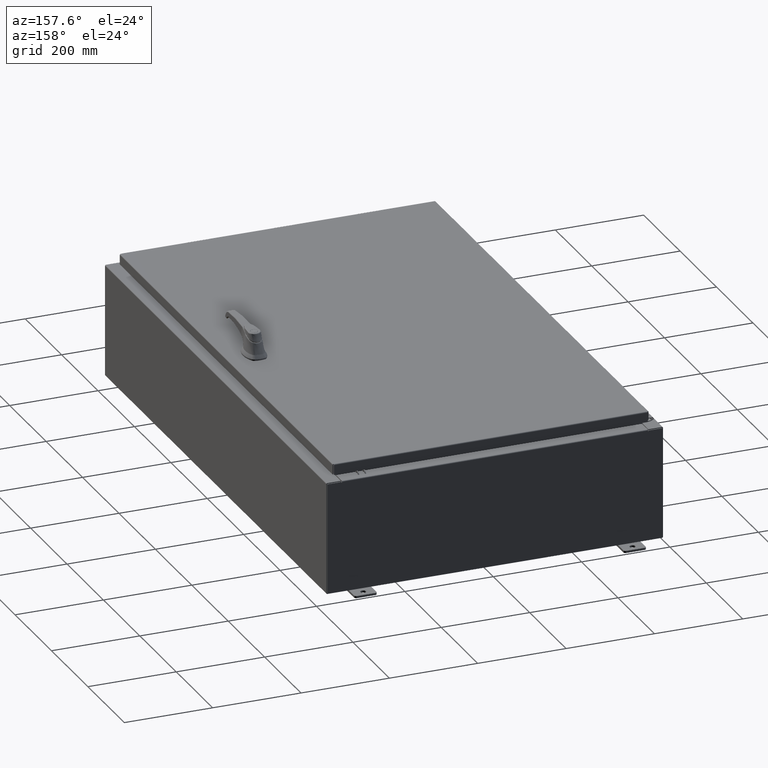
[diagram: clean part render]
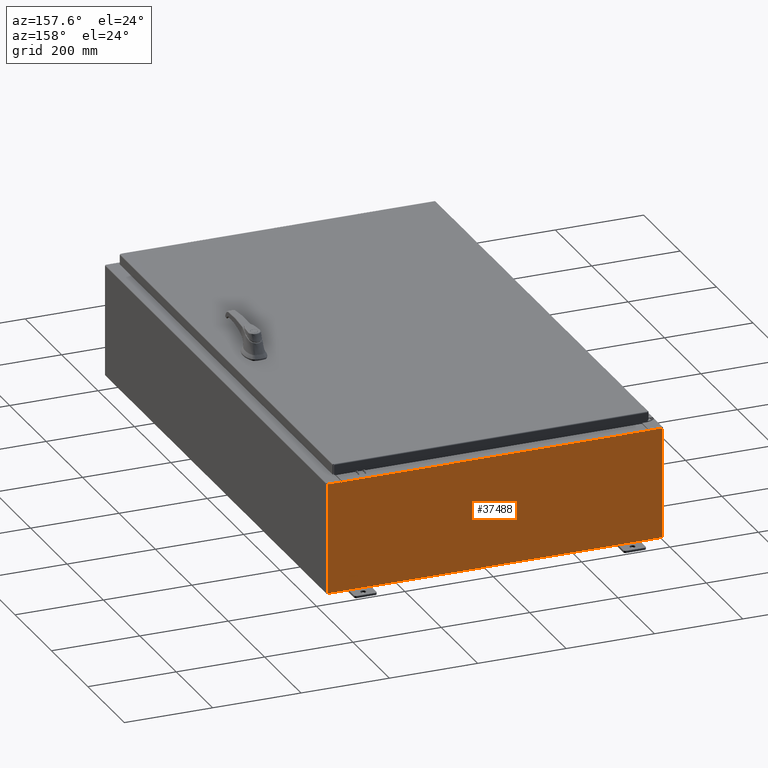
[diagram: same view with one face highlighted and labeled with its STEP entity id]
A machine part, auxiliary view. The second image highlights one B-rep face of the part: STEP entity #37488.
In plain terms, the highlighted planar face has unit normal (0, -1, 0).
Its self-contained STEP definition (entity closure, byte-faithful):
#3049 = CARTESIAN_POINT ( 'NONE',  ( -13.67455000000000000, 0.0000000000000000000, 4.925300000000000000 ) ) ;
#3611 = VERTEX_POINT ( 'NONE', #104714 ) ;
#4836 = VECTOR ( 'NONE', #118131, 39.37007874015748100 ) ;
#6062 = LINE ( 'NONE', #86007, #57395 ) ;
#7213 = DIRECTION ( 'NONE',  ( 0.0000000000000000000, 0.0000000000000000000, -1.000000000000000000 ) ) ;
#7548 = ORIENTED_EDGE ( 'NONE', *, *, #84456, .F. ) ;
#7893 = VECTOR ( 'NONE', #95316, 39.37007874015748100 ) ;
#8231 = CARTESIAN_POINT ( 'NONE',  ( 0.0000000000000000000, 0.0000000000000000000, 0.0000000000000000000 ) ) ;
#8507 = CARTESIAN_POINT ( 'NONE',  ( -14.92530000000000200, 0.0000000000000000000, 4.925300000000000000 ) ) ;
#9859 = ORIENTED_EDGE ( 'NONE', *, *, #75549, .F. ) ;
#11025 = ORIENTED_EDGE ( 'NONE', *, *, #35968, .T. ) ;
#11251 = CARTESIAN_POINT ( 'NONE',  ( 13.67454999999978500, -0.0000000000000000000, -5.935537951421795000E-013 ) ) ;
#13935 = CARTESIAN_POINT ( 'NONE',  ( -13.63720000000000000, -0.0000000000000000000, 0.0000000000000000000 ) ) ;
#14634 = CARTESIAN_POINT ( 'NONE',  ( -13.63720000000000000, -0.0000000000000000000, 4.874950000000000100 ) ) ;
#16812 = VERTEX_POINT ( 'NONE', #111968 ) ;
#18530 = DIRECTION ( 'NONE',  ( 0.0000000000000000000, -1.000000000000000000, 0.0000000000000000000 ) ) ;
#21162 = LINE ( 'NONE', #13935, #124135 ) ;
#22815 = VERTEX_POINT ( 'NONE', #23523 ) ;
#23523 = CARTESIAN_POINT ( 'NONE',  ( 13.63719999999999800, 0.0000000000000000000, 4.912300000000000100 ) ) ;
#24080 = CARTESIAN_POINT ( 'NONE',  ( -14.92530000000000200, 0.0000000000000000000, 4.925300000000000000 ) ) ;
#27742 = EDGE_CURVE ( 'NONE', #75057, #112599, #86769, .T. ) ;
#28606 = LINE ( 'NONE', #50576, #76805 ) ;
#29173 = EDGE_CURVE ( 'NONE', #81466, #51842, #120349, .T. ) ;
#33278 = ORIENTED_EDGE ( 'NONE', *, *, #101570, .F. ) ;
#33847 = EDGE_CURVE ( 'NONE', #51842, #36384, #60698, .T. ) ;
#35968 = EDGE_CURVE ( 'NONE', #112599, #51964, #6062, .T. ) ;
#36384 = VERTEX_POINT ( 'NONE', #97544 ) ;
#37488 = ADVANCED_FACE ( 'NONE', ( #118418 ), #80014, .F. ) ;
#37892 = VECTOR ( 'NONE', #115265, 39.37007874015748100 ) ;
#38180 = CARTESIAN_POINT ( 'NONE',  ( 13.67455000000000000, 0.0000000000000000000, 4.925300000000000000 ) ) ;
#41423 = VECTOR ( 'NONE', #114160, 39.37007874015748100 ) ;
#42264 = LINE ( 'NONE', #114326, #121161 ) ;
#42879 = DIRECTION ( 'NONE',  ( 0.0000000000000000000, 0.0000000000000000000, -1.000000000000000000 ) ) ;
#44397 = EDGE_CURVE ( 'NONE', #95490, #75057, #106978, .T. ) ;
#46041 = EDGE_CURVE ( 'NONE', #81466, #95490, #42264, .T. ) ;
#50576 = CARTESIAN_POINT ( 'NONE',  ( -13.67455000000000000, -0.0000000000000000000, 0.0000000000000000000 ) ) ;
#50924 = CARTESIAN_POINT ( 'NONE',  ( -13.65587500000000000, 0.0000000000000000000, 4.874950000000000100 ) ) ;
#51842 = VERTEX_POINT ( 'NONE', #53222 ) ;
#51964 = VERTEX_POINT ( 'NONE', #24080 ) ;
#52042 = VERTEX_POINT ( 'NONE', #14634 ) ;
#53222 = CARTESIAN_POINT ( 'NONE',  ( 13.67454999999999800, 0.0000000000000000000, 4.874950000000000100 ) ) ;
#53247 = CARTESIAN_POINT ( 'NONE',  ( 14.92529999999999800, 0.0000000000000000000, 4.925300000000000000 ) ) ;
#53612 = CARTESIAN_POINT ( 'NONE',  ( 13.63719999999999800, 0.0000000000000000000, 0.0000000000000000000 ) ) ;
#57395 = VECTOR ( 'NONE', #96401, 39.37007874015748100 ) ;
#60698 = CIRCLE ( 'NONE', #69977, 0.01867499999999949400 ) ;
#61201 = DIRECTION ( 'NONE',  ( 0.0000000000000000000, 0.0000000000000000000, -1.000000000000000000 ) ) ;
#64884 = EDGE_CURVE ( 'NONE', #51964, #84072, #91009, .T. ) ;
#66782 = VECTOR ( 'NONE', #80299, 39.37007874015748100 ) ;
#68646 = DIRECTION ( 'NONE',  ( -0.0000000000000000000, 1.000000000000000000, -0.0000000000000000000 ) ) ;
#69596 = ORIENTED_EDGE ( 'NONE', *, *, #27742, .T. ) ;
#69977 = AXIS2_PLACEMENT_3D ( 'NONE', #130385, #68646, #7213 ) ;
#73208 = ORIENTED_EDGE ( 'NONE', *, *, #29173, .F. ) ;
#75057 = VERTEX_POINT ( 'NONE', #127556 ) ;
#75549 = EDGE_CURVE ( 'NONE', #36384, #22815, #123240, .T. ) ;
#76805 = VECTOR ( 'NONE', #122571, 39.37007874015748100 ) ;
#78345 = ORIENTED_EDGE ( 'NONE', *, *, #33847, .F. ) ;
#80014 = PLANE ( 'NONE',  #115994 ) ;
#80231 = ORIENTED_EDGE ( 'NONE', *, *, #122891, .F. ) ;
#80299 = DIRECTION ( 'NONE',  ( 1.000000000000000000, 0.0000000000000000000, 0.0000000000000000000 ) ) ;
#81466 = VERTEX_POINT ( 'NONE', #38180 ) ;
#81940 = ORIENTED_EDGE ( 'NONE', *, *, #64884, .T. ) ;
#84072 = VERTEX_POINT ( 'NONE', #3049 ) ;
#84456 = EDGE_CURVE ( 'NONE', #52042, #3611, #114463, .T. ) ;
#86007 = CARTESIAN_POINT ( 'NONE',  ( -14.92530000000000200, 0.0000000000000000000, 4.925300000000000000 ) ) ;
#86769 = LINE ( 'NONE', #87075, #4836 ) ;
#87075 = CARTESIAN_POINT ( 'NONE',  ( -14.92530000000000200, 0.0000000000000000000, -4.925300000000000000 ) ) ;
#89845 = LINE ( 'NONE', #115997, #7893 ) ;
#90420 = DIRECTION ( 'NONE',  ( 0.0000000000000000000, -0.0000000000000000000, -1.000000000000000000 ) ) ;
#91009 = LINE ( 'NONE', #8507, #66782 ) ;
#91281 = AXIS2_PLACEMENT_3D ( 'NONE', #50924, #122930, #61201 ) ;
#92761 = ORIENTED_EDGE ( 'NONE', *, *, #44397, .T. ) ;
#95316 = DIRECTION ( 'NONE',  ( 1.000000000000000000, 0.0000000000000000000, 0.0000000000000000000 ) ) ;
#95490 = VERTEX_POINT ( 'NONE', #122872 ) ;
#96401 = DIRECTION ( 'NONE',  ( -0.0000000000000000000, -0.0000000000000000000, 1.000000000000000000 ) ) ;
#97544 = CARTESIAN_POINT ( 'NONE',  ( 13.63719999999999800, 0.0000000000000000000, 4.874950000000000100 ) ) ;
#101570 = EDGE_CURVE ( 'NONE', #3611, #84072, #28606, .T. ) ;
#102189 = CARTESIAN_POINT ( 'NONE',  ( -14.92530000000000200, 0.0000000000000000000, -4.925300000000000000 ) ) ;
#103235 = ORIENTED_EDGE ( 'NONE', *, *, #46041, .T. ) ;
#104714 = CARTESIAN_POINT ( 'NONE',  ( -13.67455000000000000, 0.0000000000000000000, 4.874950000000000100 ) ) ;
#106162 = EDGE_LOOP ( 'NONE', ( #33278, #7548, #80231, #114523, #9859, #78345, #73208, #103235, #92761, #69596, #11025, #81940 ) ) ;
#106978 = LINE ( 'NONE', #53247, #131105 ) ;
#111968 = CARTESIAN_POINT ( 'NONE',  ( -13.63720000000000000, -7.171100983368691200E-016, 4.912300000000000100 ) ) ;
#112599 = VERTEX_POINT ( 'NONE', #102189 ) ;
#114160 = DIRECTION ( 'NONE',  ( -4.340572780400004900E-014, 0.0000000000000000000, -1.000000000000000000 ) ) ;
#114326 = CARTESIAN_POINT ( 'NONE',  ( -14.92530000000000200, 0.0000000000000000000, 4.925300000000000000 ) ) ;
#114463 = CIRCLE ( 'NONE', #91281, 0.01867499999999949400 ) ;
#114523 = ORIENTED_EDGE ( 'NONE', *, *, #131218, .T. ) ;
#115265 = DIRECTION ( 'NONE',  ( 0.0000000000000000000, 0.0000000000000000000, 1.000000000000000000 ) ) ;
#115994 = AXIS2_PLACEMENT_3D ( 'NONE', #8231, #18530, #90420 ) ;
#115997 = CARTESIAN_POINT ( 'NONE',  ( -13.63720000000000400, -7.171100983368691200E-016, 4.912300000000000100 ) ) ;
#118131 = DIRECTION ( 'NONE',  ( -1.000000000000000000, -0.0000000000000000000, -0.0000000000000000000 ) ) ;
#118418 = FACE_OUTER_BOUND ( 'NONE', #106162, .T. ) ;
#120349 = LINE ( 'NONE', #11251, #41423 ) ;
#121161 = VECTOR ( 'NONE', #124683, 39.37007874015748100 ) ;
#122571 = DIRECTION ( 'NONE',  ( 0.0000000000000000000, 0.0000000000000000000, 1.000000000000000000 ) ) ;
#122872 = CARTESIAN_POINT ( 'NONE',  ( 14.92529999999999800, 0.0000000000000000000, 4.925300000000000000 ) ) ;
#122891 = EDGE_CURVE ( 'NONE', #16812, #52042, #21162, .T. ) ;
#122930 = DIRECTION ( 'NONE',  ( -0.0000000000000000000, 1.000000000000000000, -0.0000000000000000000 ) ) ;
#123240 = LINE ( 'NONE', #53612, #37892 ) ;
#124135 = VECTOR ( 'NONE', #126785, 39.37007874015748100 ) ;
#124683 = DIRECTION ( 'NONE',  ( 1.000000000000000000, 0.0000000000000000000, 0.0000000000000000000 ) ) ;
#126785 = DIRECTION ( 'NONE',  ( 0.0000000000000000000, 0.0000000000000000000, -1.000000000000000000 ) ) ;
#127556 = CARTESIAN_POINT ( 'NONE',  ( 14.92529999999999800, 0.0000000000000000000, -4.925300000000000000 ) ) ;
#130385 = CARTESIAN_POINT ( 'NONE',  ( 13.65587499999999800, 0.0000000000000000000, 4.874950000000000100 ) ) ;
#131105 = VECTOR ( 'NONE', #42879, 39.37007874015748100 ) ;
#131218 = EDGE_CURVE ( 'NONE', #16812, #22815, #89845, .T. ) ;